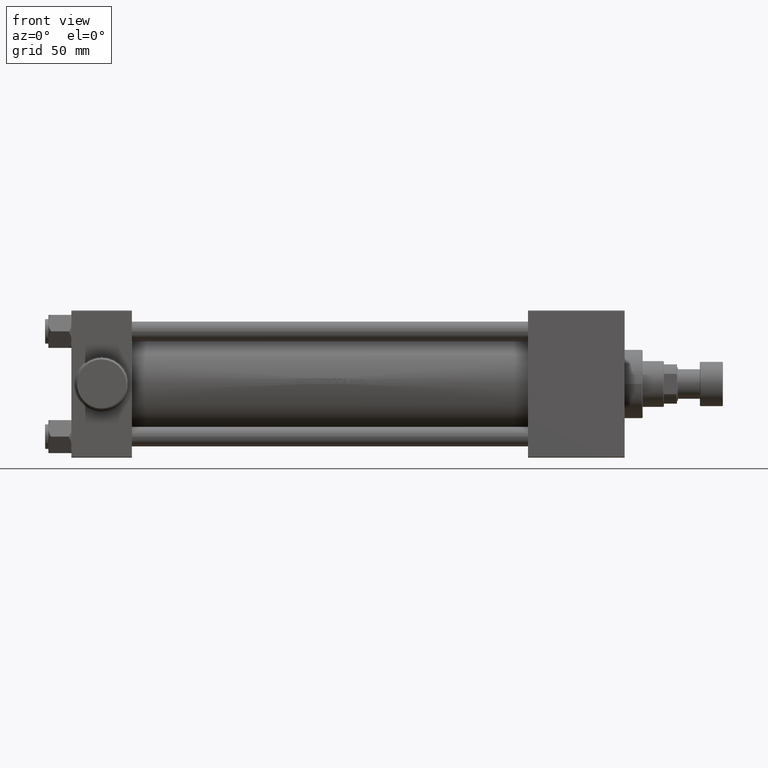
[diagram: clean part render]
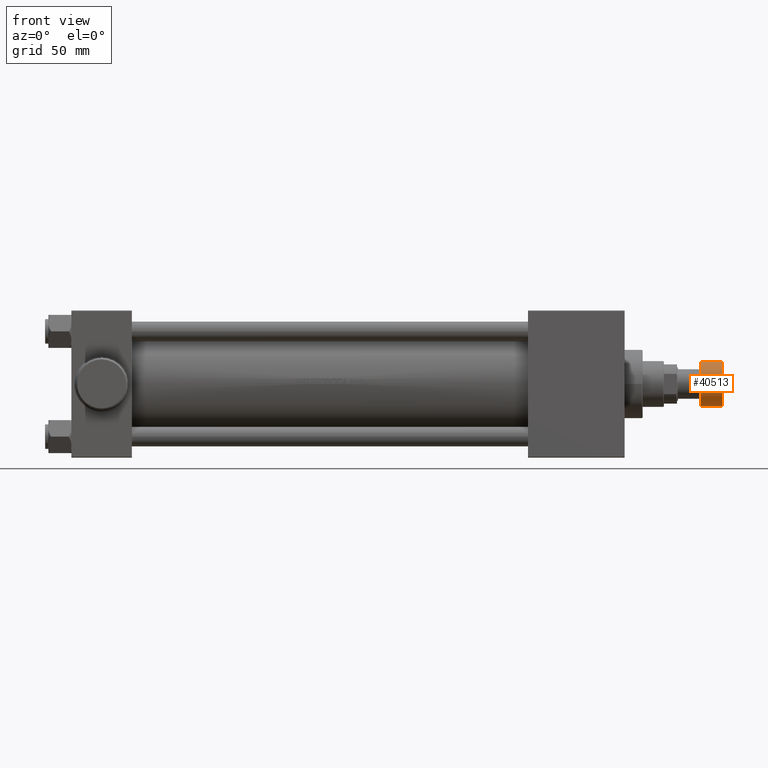
[diagram: same view with one face highlighted and labeled with its STEP entity id]
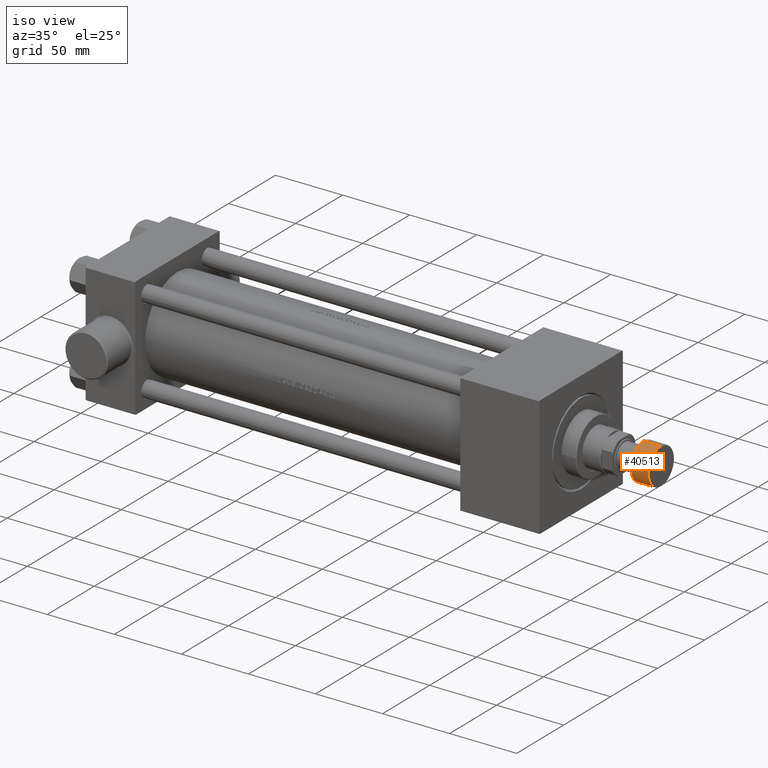
[diagram: same view with one face highlighted and labeled with its STEP entity id]
A machine part, front view. The second image highlights one B-rep face of the part: STEP entity #40513.
A second angle (iso view) of the same face is appended — the face is thin or edge-on in the first view.
In plain terms, the highlighted cylindrical surface (edge-blend (fillet) strip) has radius 13.5 mm, axis along (1, 0, 0).
Its self-contained STEP definition (entity closure, byte-faithful):
#1167 = AXIS2_PLACEMENT_3D ( 'NONE', #46025, #41769, #9384 ) ;
#1374 = CARTESIAN_POINT ( 'NONE',  ( 0.000000000000000000, 0.000000000000000000, -0.5000000000000004441 ) ) ;
#2467 = VERTEX_POINT ( 'NONE', #7871 ) ;
#3983 = DIRECTION ( 'NONE',  ( 1.000000000000000000, 0.000000000000000000, 0.000000000000000000 ) ) ;
#5814 = AXIS2_PLACEMENT_3D ( 'NONE', #11316, #29298, #3983 ) ;
#6308 = FACE_OUTER_BOUND ( 'NONE', #38242, .T. ) ;
#6906 = EDGE_CURVE ( 'NONE', #20936, #2467, #13157, .T. ) ;
#7871 = CARTESIAN_POINT ( 'NONE',  ( -13.50000000000000000, 1.653273178848926867E-15, -0.5000000000000004441 ) ) ;
#8342 = CARTESIAN_POINT ( 'NONE',  ( -13.50000000000000000, 1.653273178848926867E-15, -14.00000000000000000 ) ) ;
#8777 = VECTOR ( 'NONE', #12350, 1000.000000000000000 ) ;
#9384 = DIRECTION ( 'NONE',  ( 1.000000000000000000, 0.000000000000000000, 0.000000000000000000 ) ) ;
#11316 = CARTESIAN_POINT ( 'NONE',  ( 0.000000000000000000, 0.000000000000000000, -13.50000000000000000 ) ) ;
#12350 = DIRECTION ( 'NONE',  ( 0.000000000000000000, 0.000000000000000000, 1.000000000000000000 ) ) ;
#13157 = CIRCLE ( 'NONE', #16156, 13.50000000000000000 ) ;
#13398 = ORIENTED_EDGE ( 'NONE', *, *, #6906, .T. ) ;
#15173 = ORIENTED_EDGE ( 'NONE', *, *, #17507, .T. ) ;
#16156 = AXIS2_PLACEMENT_3D ( 'NONE', #1374, #42027, #16976 ) ;
#16976 = DIRECTION ( 'NONE',  ( 1.000000000000000000, 0.000000000000000000, 0.000000000000000000 ) ) ;
#17507 = EDGE_CURVE ( 'NONE', #30544, #20936, #30324, .T. ) ;
#18792 = EDGE_CURVE ( 'NONE', #28575, #30544, #39031, .T. ) ;
#19003 = LINE ( 'NONE', #8342, #26944 ) ;
#20936 = VERTEX_POINT ( 'NONE', #21271 ) ;
#21137 = CARTESIAN_POINT ( 'NONE',  ( -13.50000000000000000, 1.653273178848926867E-15, -13.50000000000000000 ) ) ;
#21271 = CARTESIAN_POINT ( 'NONE',  ( 13.50000000000000000, 0.000000000000000000, -0.5000000000000004441 ) ) ;
#25852 = ORIENTED_EDGE ( 'NONE', *, *, #43491, .F. ) ;
#26944 = VECTOR ( 'NONE', #42151, 1000.000000000000000 ) ;
#28575 = VERTEX_POINT ( 'NONE', #21137 ) ;
#29298 = DIRECTION ( 'NONE',  ( 0.000000000000000000, 0.000000000000000000, 1.000000000000000000 ) ) ;
#30324 = LINE ( 'NONE', #44717, #8777 ) ;
#30544 = VERTEX_POINT ( 'NONE', #31080 ) ;
#31080 = CARTESIAN_POINT ( 'NONE',  ( 13.50000000000000000, 0.000000000000000000, -13.50000000000000000 ) ) ;
#38234 = CYLINDRICAL_SURFACE ( 'NONE', #1167, 13.50000000000000000 ) ;
#38242 = EDGE_LOOP ( 'NONE', ( #25852, #46401, #15173, #13398 ) ) ;
#39031 = CIRCLE ( 'NONE', #5814, 13.50000000000000000 ) ;
#40513 = ADVANCED_FACE ( 'NONE', ( #6308 ), #38234, .T. ) ;
#41769 = DIRECTION ( 'NONE',  ( 0.000000000000000000, 0.000000000000000000, 1.000000000000000000 ) ) ;
#42027 = DIRECTION ( 'NONE',  ( -0.000000000000000000, -0.000000000000000000, -1.000000000000000000 ) ) ;
#42151 = DIRECTION ( 'NONE',  ( 0.000000000000000000, 0.000000000000000000, 1.000000000000000000 ) ) ;
#43491 = EDGE_CURVE ( 'NONE', #28575, #2467, #19003, .T. ) ;
#44717 = CARTESIAN_POINT ( 'NONE',  ( 13.50000000000000000, 0.000000000000000000, -14.00000000000000000 ) ) ;
#46025 = CARTESIAN_POINT ( 'NONE',  ( 0.000000000000000000, 0.000000000000000000, -14.00000000000000000 ) ) ;
#46401 = ORIENTED_EDGE ( 'NONE', *, *, #18792, .T. ) ;